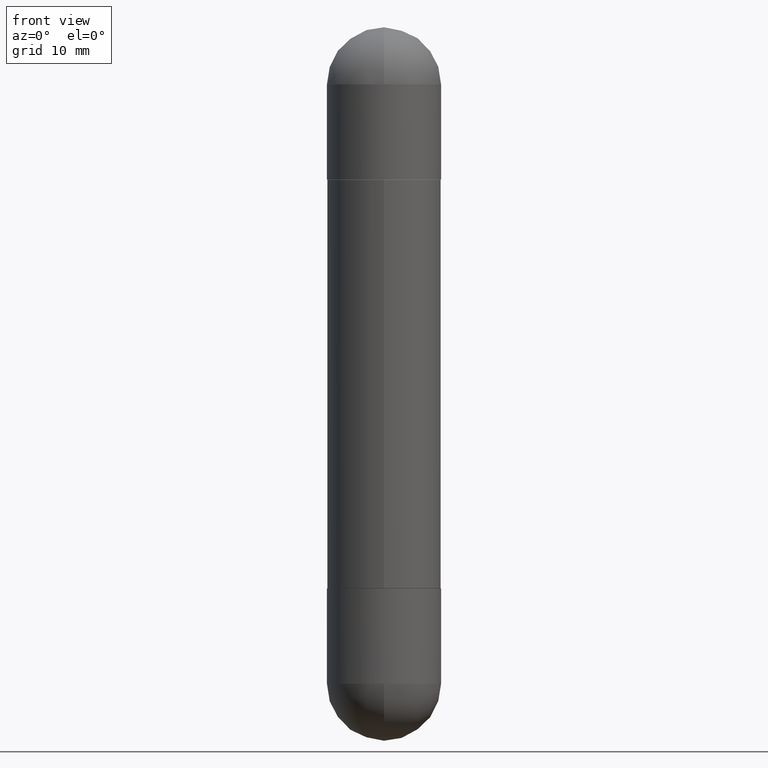
[diagram: clean part render]
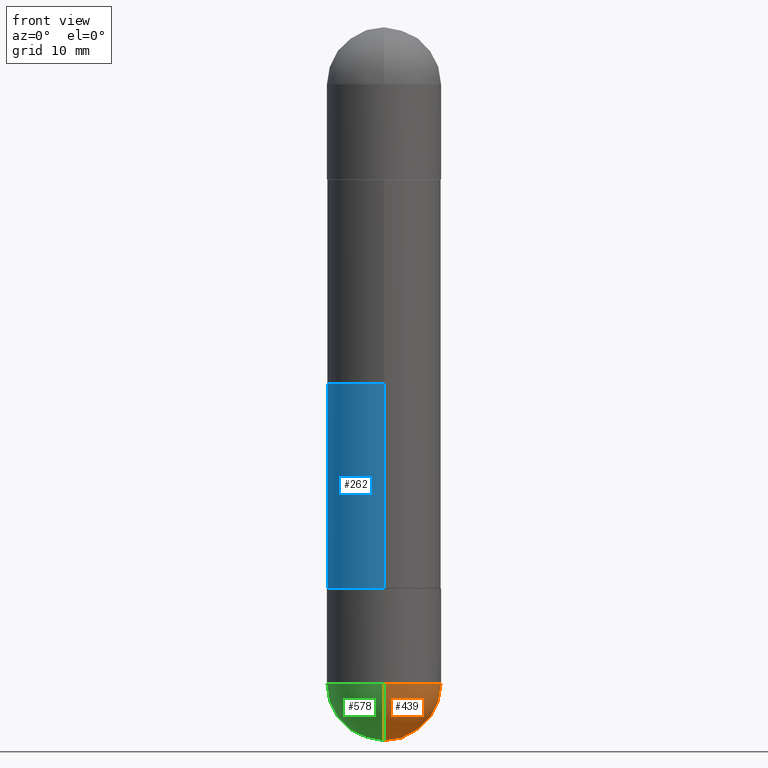
[diagram: same view with three faces highlighted in distinct colors, each labeled with its STEP entity id]
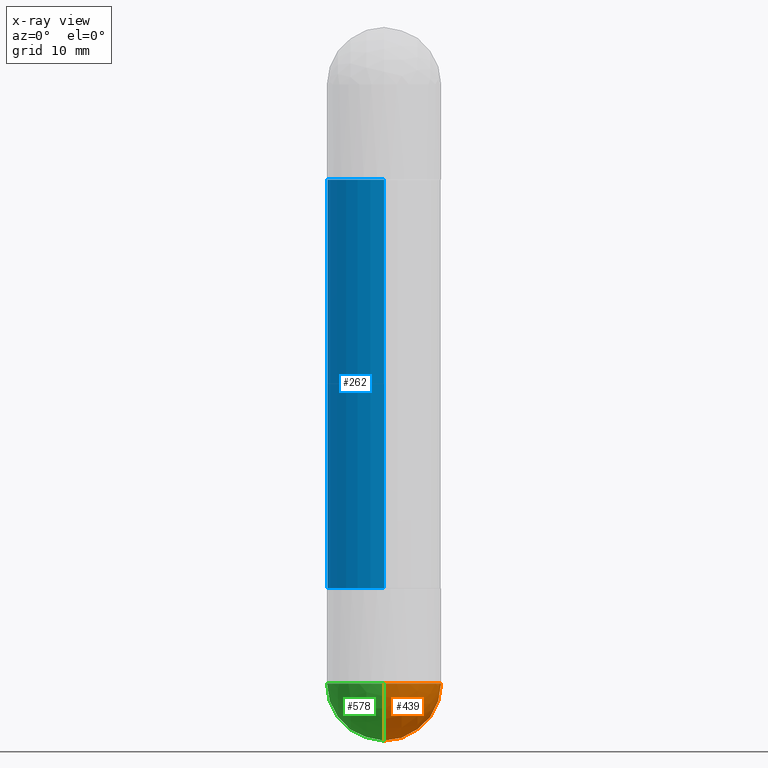
[diagram: x-ray of the same camera — body ghosted, the three highlighted faces saturated]
A machine part, front view with three faces highlighted in distinct colors.
The next image is the same camera in x-ray (body ghosted, the three faces saturated) — at least one of them is partly hidden behind the body in this view.
Their STEP definitions:

[orange] entity #439 — the highlighted spherical surface has radius 5.9995 mm.
#7 = AXIS2_PLACEMENT_3D ( 'NONE', #759, #198, #189 ) ;
#25 = SPHERICAL_SURFACE ( 'NONE', #464, 0.2362000000000002709 ) ;
#65 = CIRCLE ( 'NONE', #787, 0.2361999999999999933 ) ;
#108 = DIRECTION ( 'NONE',  ( -7.105427357601001070E-15, -1.000000000000000000, 0.000000000000000000 ) ) ;
#134 = DIRECTION ( 'NONE',  ( 1.000000000000000000, -6.982962677686265133E-15, 0.000000000000000000 ) ) ;
#151 = EDGE_LOOP ( 'NONE', ( #612, #668, #660, #520 ) ) ;
#189 = DIRECTION ( 'NONE',  ( 6.982962677686265922E-15, 1.000000000000000000, 0.000000000000000000 ) ) ;
#198 = DIRECTION ( 'NONE',  ( 1.000000000000000000, -6.982962677686265922E-15, 4.883557194083112340E-29 ) ) ;
#201 = FACE_OUTER_BOUND ( 'NONE', #151, .T. ) ;
#236 = VERTEX_POINT ( 'NONE', #628 ) ;
#240 = CARTESIAN_POINT ( 'NONE',  ( 6.312240780968655053E-29, -9.959140573241337406E-15, -2.716599999999999682 ) ) ;
#244 = EDGE_CURVE ( 'NONE', #636, #265, #546, .T. ) ;
#264 = CARTESIAN_POINT ( 'NONE',  ( 6.643360558882540179E-29, -9.484958205101285532E-15, -2.716599999999999238 ) ) ;
#265 = VERTEX_POINT ( 'NONE', #447 ) ;
#266 = CARTESIAN_POINT ( 'NONE',  ( -1.678301941865292496E-15, -0.2362000000000098743, -2.716599999999997905 ) ) ;
#267 = DIRECTION ( 'NONE',  ( 1.000000000000000000, -6.982962677686265133E-15, 0.000000000000000000 ) ) ;
#276 = DIRECTION ( 'NONE',  ( -1.000000000000000000, 6.982962677686265922E-15, -4.883557194083112901E-29 ) ) ;
#286 = AXIS2_PLACEMENT_3D ( 'NONE', #264, #455, #267 ) ;
#320 = DIRECTION ( 'NONE',  ( -2.445468806185136597E-29, 3.491481338843145583E-15, 1.000000000000000000 ) ) ;
#402 = CIRCLE ( 'NONE', #735, 0.2362000000000002709 ) ;
#408 = EDGE_CURVE ( 'NONE', #236, #265, #664, .T. ) ;
#439 = ADVANCED_FACE ( 'NONE', ( #201 ), #25, .T. ) ;
#447 = CARTESIAN_POINT ( 'NONE',  ( 1.649375784469561606E-15, 0.2361999999999903899, -2.716600000000000126 ) ) ;
#455 = DIRECTION ( 'NONE',  ( -2.445468806185136597E-29, 3.491481338843145583E-15, 1.000000000000000000 ) ) ;
#464 = AXIS2_PLACEMENT_3D ( 'NONE', #770, #276, #642 ) ;
#520 = ORIENTED_EDGE ( 'NONE', *, *, #756, .F. ) ;
#539 = DIRECTION ( 'NONE',  ( -1.000000000000000000, 7.105427357601001070E-15, -4.926315508542082329E-29 ) ) ;
#546 = CIRCLE ( 'NONE', #7, 0.2362000000000002709 ) ;
#569 = EDGE_CURVE ( 'NONE', #636, #791, #402, .T. ) ;
#607 = CARTESIAN_POINT ( 'NONE',  ( 6.899960026864792464E-29, -1.076936538677815810E-14, -2.952799999999999869 ) ) ;
#612 = ORIENTED_EDGE ( 'NONE', *, *, #569, .F. ) ;
#626 = CARTESIAN_POINT ( 'NONE',  ( 6.643360558882540179E-29, -9.484958205101285532E-15, -2.716599999999999238 ) ) ;
#628 = CARTESIAN_POINT ( 'NONE',  ( 0.2361999999999999933, -1.044703588801951204E-14, -2.716599999999999238 ) ) ;
#636 = VERTEX_POINT ( 'NONE', #607 ) ;
#642 = DIRECTION ( 'NONE',  ( 6.982962677686265922E-15, 1.000000000000000000, -4.626330217890364603E-15 ) ) ;
#660 = ORIENTED_EDGE ( 'NONE', *, *, #408, .F. ) ;
#664 = CIRCLE ( 'NONE', #286, 0.2361999999999999933 ) ;
#668 = ORIENTED_EDGE ( 'NONE', *, *, #244, .T. ) ;
#735 = AXIS2_PLACEMENT_3D ( 'NONE', #240, #539, #108 ) ;
#756 = EDGE_CURVE ( 'NONE', #791, #236, #65, .T. ) ;
#759 = CARTESIAN_POINT ( 'NONE',  ( 6.312240780968655053E-29, -9.959140573241337406E-15, -2.716599999999999682 ) ) ;
#770 = CARTESIAN_POINT ( 'NONE',  ( 6.312240780968655053E-29, -9.959140573241337406E-15, -2.716599999999999682 ) ) ;
#787 = AXIS2_PLACEMENT_3D ( 'NONE', #626, #320, #134 ) ;
#791 = VERTEX_POINT ( 'NONE', #266 ) ;

[blue] entity #262 — the highlighted cylindrical surface (partial cylindrical patch) has radius 5.9995 mm, axis along (-0, 0, -1).
#10 = CIRCLE ( 'NONE', #233, 0.2362000000000002709 ) ;
#34 = VERTEX_POINT ( 'NONE', #613 ) ;
#40 = DIRECTION ( 'NONE',  ( -2.446269011737253115E-29, 3.490335398947642466E-15, -1.000000000000000000 ) ) ;
#54 = CARTESIAN_POINT ( 'NONE',  ( -1.649375784469441108E-15, -0.2362000000000083755, -2.321899999999998965 ) ) ;
#66 = DIRECTION ( 'NONE',  ( -2.446269011737253396E-29, 3.490335398947642861E-15, -1.000000000000000000 ) ) ;
#87 = ORIENTED_EDGE ( 'NONE', *, *, #619, .T. ) ;
#92 = DIRECTION ( 'NONE',  ( -6.982962677686265922E-15, -1.000000000000000000, 3.469747663417773058E-15 ) ) ;
#112 = EDGE_LOOP ( 'NONE', ( #538, #87, #553, #169 ) ) ;
#125 = CARTESIAN_POINT ( 'NONE',  ( 5.679992018352727461E-29, -8.104209762816530877E-15, -0.6309000000000001274 ) ) ;
#140 = DIRECTION ( 'NONE',  ( -2.446269011737253115E-29, 3.490335398947642466E-15, -1.000000000000000000 ) ) ;
#148 = CARTESIAN_POINT ( 'NONE',  ( 5.679992018352727461E-29, -8.104209762816530877E-15, -2.321899999999999409 ) ) ;
#150 = VECTOR ( 'NONE', #140, 39.37007874015748143 ) ;
#152 = CIRCLE ( 'NONE', #313, 0.2362000000000002709 ) ;
#169 = ORIENTED_EDGE ( 'NONE', *, *, #506, .F. ) ;
#184 = AXIS2_PLACEMENT_3D ( 'NONE', #374, #66, #698 ) ;
#221 = VERTEX_POINT ( 'NONE', #319 ) ;
#233 = AXIS2_PLACEMENT_3D ( 'NONE', #125, #567, #751 ) ;
#262 = ADVANCED_FACE ( 'NONE', ( #508 ), #383, .T. ) ;
#313 = AXIS2_PLACEMENT_3D ( 'NONE', #148, #721, #92 ) ;
#319 = CARTESIAN_POINT ( 'NONE',  ( 1.620449627073694243E-15, 0.2361999999999921662, -0.6308999999999992392 ) ) ;
#374 = CARTESIAN_POINT ( 'NONE',  ( 0.000000000000000000, 0.000000000000000000, -2.952799999999999869 ) ) ;
#383 = CYLINDRICAL_SURFACE ( 'NONE', #184, 0.2362000000000001598 ) ;
#437 = CARTESIAN_POINT ( 'NONE',  ( 1.620449627073673141E-15, 0.2361999999999922217, -2.321900000000000297 ) ) ;
#481 = EDGE_CURVE ( 'NONE', #739, #652, #152, .T. ) ;
#486 = LINE ( 'NONE', #744, #587 ) ;
#506 = EDGE_CURVE ( 'NONE', #34, #652, #522, .T. ) ;
#508 = FACE_OUTER_BOUND ( 'NONE', #112, .T. ) ;
#522 = LINE ( 'NONE', #591, #150 ) ;
#538 = ORIENTED_EDGE ( 'NONE', *, *, #724, .F. ) ;
#553 = ORIENTED_EDGE ( 'NONE', *, *, #481, .T. ) ;
#567 = DIRECTION ( 'NONE',  ( 2.446269011737253396E-29, -3.490335398947642861E-15, 1.000000000000000000 ) ) ;
#587 = VECTOR ( 'NONE', #40, 39.37007874015748143 ) ;
#591 = CARTESIAN_POINT ( 'NONE',  ( -1.649375784469497117E-15, -0.2362000000000001598, -2.952800000000000757 ) ) ;
#613 = CARTESIAN_POINT ( 'NONE',  ( -1.649375784469441108E-15, -0.2362000000000083755, -0.6309000000000009045 ) ) ;
#619 = EDGE_CURVE ( 'NONE', #221, #739, #486, .T. ) ;
#652 = VERTEX_POINT ( 'NONE', #54 ) ;
#698 = DIRECTION ( 'NONE',  ( -6.982962677686265922E-15, -1.000000000000000000, -4.626330217890366181E-15 ) ) ;
#721 = DIRECTION ( 'NONE',  ( -2.446269011737253396E-29, 3.490335398947642861E-15, 1.000000000000000000 ) ) ;
#724 = EDGE_CURVE ( 'NONE', #221, #34, #10, .T. ) ;
#739 = VERTEX_POINT ( 'NONE', #437 ) ;
#744 = CARTESIAN_POINT ( 'NONE',  ( 1.620449627073636656E-15, 0.2362000000000001598, -2.952799999999998537 ) ) ;
#751 = DIRECTION ( 'NONE',  ( -6.982962677686265922E-15, -1.000000000000000000, -3.469747663417773058E-15 ) ) ;

[green] entity #578 — the highlighted spherical surface has radius 5.9995 mm.
#6 = DIRECTION ( 'NONE',  ( 1.000000000000000000, -6.982962677686265133E-15, 0.000000000000000000 ) ) ;
#7 = AXIS2_PLACEMENT_3D ( 'NONE', #759, #198, #189 ) ;
#57 = CARTESIAN_POINT ( 'NONE',  ( 6.643360558882540179E-29, -9.484958205101285532E-15, -2.716599999999999238 ) ) ;
#80 = CARTESIAN_POINT ( 'NONE',  ( -0.2361999999999999933, -7.119358161684659123E-15, -2.716599999999999238 ) ) ;
#91 = EDGE_CURVE ( 'NONE', #265, #781, #337, .T. ) ;
#98 = EDGE_LOOP ( 'NONE', ( #475, #223, #442, #335 ) ) ;
#100 = DIRECTION ( 'NONE',  ( 1.000000000000000000, -6.982962677686265133E-15, 0.000000000000000000 ) ) ;
#108 = DIRECTION ( 'NONE',  ( -7.105427357601001070E-15, -1.000000000000000000, 0.000000000000000000 ) ) ;
#115 = DIRECTION ( 'NONE',  ( -2.445468806185136597E-29, 3.491481338843145583E-15, 1.000000000000000000 ) ) ;
#171 = SPHERICAL_SURFACE ( 'NONE', #573, 0.2362000000000002709 ) ;
#189 = DIRECTION ( 'NONE',  ( 6.982962677686265922E-15, 1.000000000000000000, 0.000000000000000000 ) ) ;
#198 = DIRECTION ( 'NONE',  ( 1.000000000000000000, -6.982962677686265922E-15, 4.883557194083112340E-29 ) ) ;
#223 = ORIENTED_EDGE ( 'NONE', *, *, #569, .T. ) ;
#240 = CARTESIAN_POINT ( 'NONE',  ( 6.312240780968655053E-29, -9.959140573241337406E-15, -2.716599999999999682 ) ) ;
#244 = EDGE_CURVE ( 'NONE', #636, #265, #546, .T. ) ;
#265 = VERTEX_POINT ( 'NONE', #447 ) ;
#266 = CARTESIAN_POINT ( 'NONE',  ( -1.678301941865292496E-15, -0.2362000000000098743, -2.716599999999997905 ) ) ;
#335 = ORIENTED_EDGE ( 'NONE', *, *, #91, .F. ) ;
#337 = CIRCLE ( 'NONE', #693, 0.2361999999999999933 ) ;
#369 = CARTESIAN_POINT ( 'NONE',  ( 6.312240780968655053E-29, -9.959140573241337406E-15, -2.716599999999999682 ) ) ;
#402 = CIRCLE ( 'NONE', #735, 0.2362000000000002709 ) ;
#415 = DIRECTION ( 'NONE',  ( -1.000000000000000000, 6.982962677686265922E-15, -4.883557194083112901E-29 ) ) ;
#442 = ORIENTED_EDGE ( 'NONE', *, *, #761, .F. ) ;
#447 = CARTESIAN_POINT ( 'NONE',  ( 1.649375784469561606E-15, 0.2361999999999903899, -2.716600000000000126 ) ) ;
#454 = CIRCLE ( 'NONE', #630, 0.2361999999999999933 ) ;
#475 = ORIENTED_EDGE ( 'NONE', *, *, #244, .F. ) ;
#539 = DIRECTION ( 'NONE',  ( -1.000000000000000000, 7.105427357601001070E-15, -4.926315508542082329E-29 ) ) ;
#546 = CIRCLE ( 'NONE', #7, 0.2362000000000002709 ) ;
#569 = EDGE_CURVE ( 'NONE', #636, #791, #402, .T. ) ;
#570 = DIRECTION ( 'NONE',  ( -2.445468806185136597E-29, 3.491481338843145583E-15, 1.000000000000000000 ) ) ;
#573 = AXIS2_PLACEMENT_3D ( 'NONE', #369, #415, #615 ) ;
#578 = ADVANCED_FACE ( 'NONE', ( #679 ), #171, .T. ) ;
#607 = CARTESIAN_POINT ( 'NONE',  ( 6.899960026864792464E-29, -1.076936538677815810E-14, -2.952799999999999869 ) ) ;
#615 = DIRECTION ( 'NONE',  ( 6.982962677686265922E-15, 1.000000000000000000, -4.626330217890364603E-15 ) ) ;
#630 = AXIS2_PLACEMENT_3D ( 'NONE', #57, #570, #6 ) ;
#636 = VERTEX_POINT ( 'NONE', #607 ) ;
#662 = CARTESIAN_POINT ( 'NONE',  ( 6.643360558882540179E-29, -9.484958205101285532E-15, -2.716599999999999238 ) ) ;
#679 = FACE_OUTER_BOUND ( 'NONE', #98, .T. ) ;
#693 = AXIS2_PLACEMENT_3D ( 'NONE', #662, #115, #100 ) ;
#735 = AXIS2_PLACEMENT_3D ( 'NONE', #240, #539, #108 ) ;
#759 = CARTESIAN_POINT ( 'NONE',  ( 6.312240780968655053E-29, -9.959140573241337406E-15, -2.716599999999999682 ) ) ;
#761 = EDGE_CURVE ( 'NONE', #781, #791, #454, .T. ) ;
#781 = VERTEX_POINT ( 'NONE', #80 ) ;
#791 = VERTEX_POINT ( 'NONE', #266 ) ;